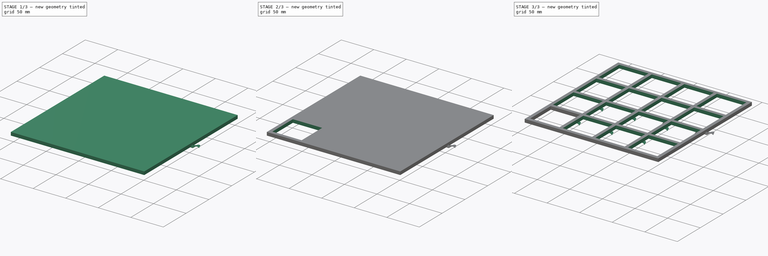
[diagram: build sequence overview — one tinted view per stage of 3, left to right]
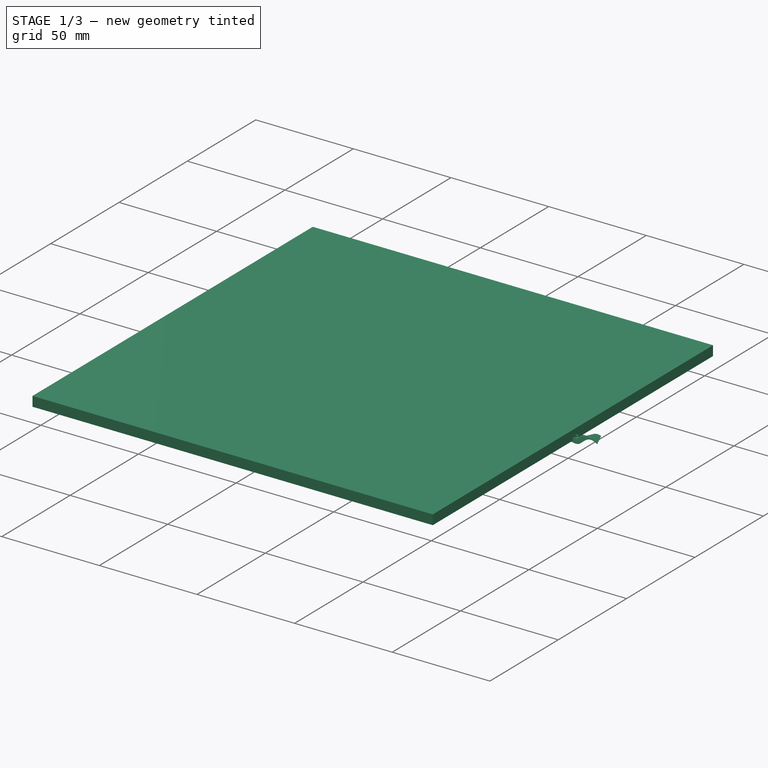
[diagram: stage 1 of 3 — iso view after this stage's code; geometry added in this stage tinted green]
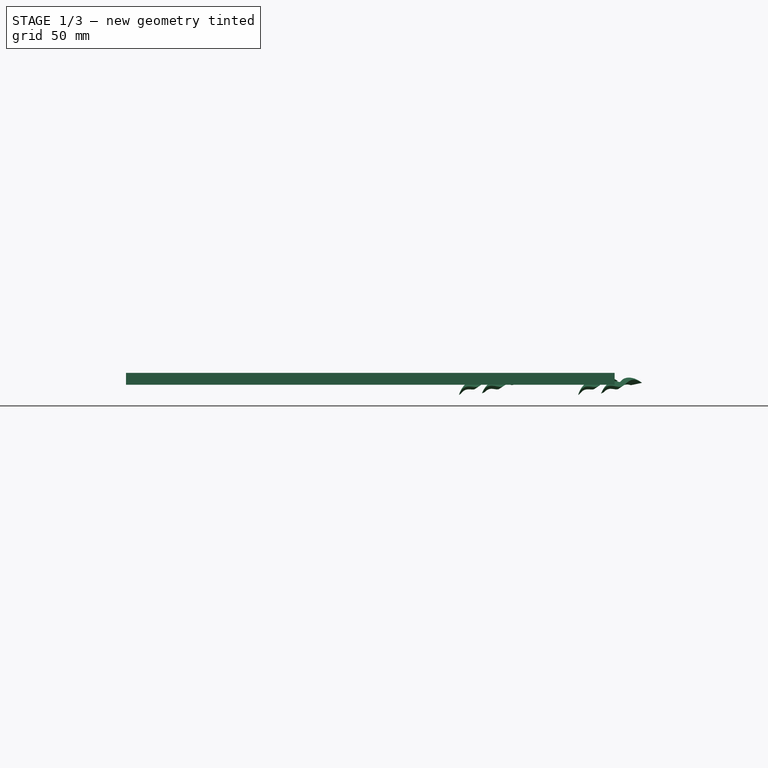
[diagram: stage 1 of 3 — front view after this stage's code; geometry added in this stage tinted green]
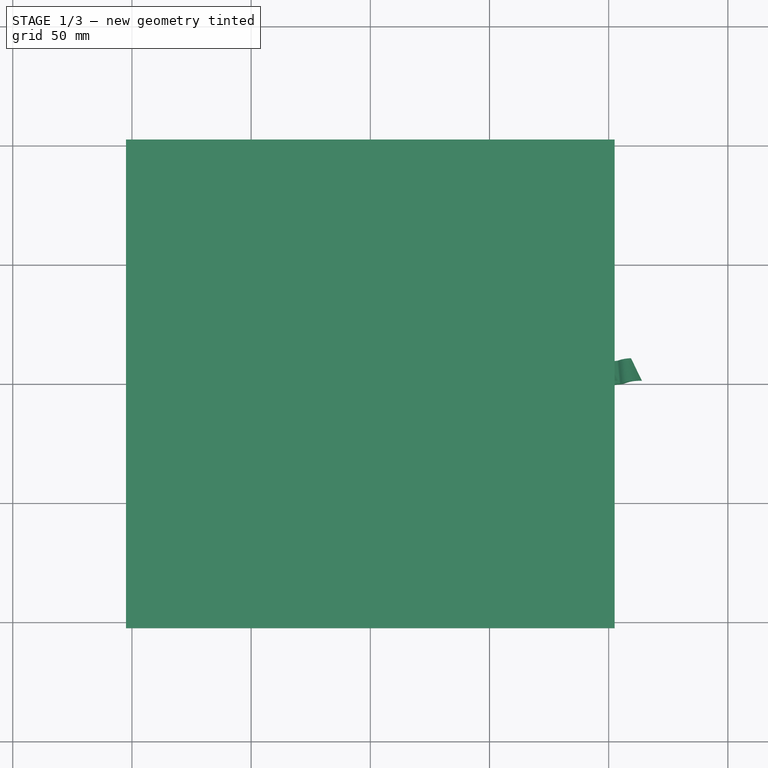
[diagram: stage 1 of 3 — top view after this stage's code; geometry added in this stage tinted green]
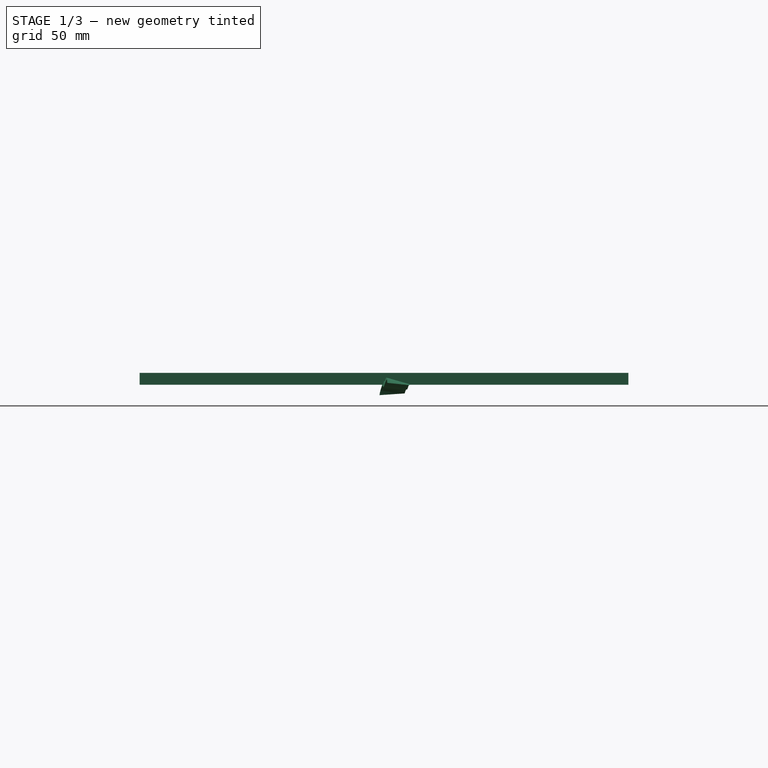
[diagram: stage 1 of 3 — right view after this stage's code; geometry added in this stage tinted green]
FCSTD DOCUMENT  (FreeCAD 0.19R)
Label: TestParentChildPositions
License: Creative Commons Attribution-ShareAlike
LicenseURL: http://creativecommons.org/licenses/by-sa/4.0/
objects: Part::Feature×9, App::Link×8, App::Part×8, App::LinkElement×5, Sketcher::SketchObject×5, PartDesign::LinearPattern×2, Part::FeaturePython×2, PartDesign::Pad×1, PartDesign::Pocket×1, PartDesign::MultiTransform×1, PartDesign::Body×1
note: 22 computed .brp shape members not serialized (recipe doc carries the construction recipe); baked Part::Feature solids carry a one-line shape summary decoded from their .brp

FEATURE [Part::Feature] Link__sc_export  label="Seagull_A1"
  Placement = pos=(-100,-100,0) rot=(-0.768115,-0.362358,0.527917;0.25814rad)
  shape: bbox 17.76 x 12.26 x 11.03 mm, 4 faces (baked)
FEATURE [App::LinkElement] Link001_i0  label="B1"
  LinkPlacement = pos=(-100,0,0) rot=(0,0,1;0rad)
  LinkedObject = -> Link__sc_export
  Placement = pos=(-100,0,0) rot=(0,0,1;0rad)
FEATURE [App::LinkElement] Link001_i1  label="B2"
  LinkPlacement = pos=(-50,0,-10) rot=(0,0,1;0rad)
  LinkedObject = -> Link__sc_export
  Placement = pos=(-50,0,-10) rot=(0,0,1;0rad)
  Scale = 0.6
  ScaleVector = (0.6,0.6,0.6)
FEATURE [App::LinkElement] Link001_i2  label="B3"
  LinkPlacement = pos=(0,0,-5) rot=(0,0,1;0rad)
  LinkedObject = -> Link__sc_export
  Placement = pos=(0,0,-5) rot=(0,0,1;0rad)
  Scale = 0.9
  ScaleVector = (0.9,0.9,0.9)
FEATURE [App::LinkElement] Link001_i3  label="B4"
  LinkPlacement = pos=(50,0,0) rot=(-0.409064,-0.236175,-0.881412;1.1598rad)
  LinkedObject = -> Link__sc_export
  Placement = pos=(50,0,0) rot=(-0.409064,-0.236175,-0.881412;1.1598rad)
FEATURE [App::LinkElement] Link001_i4  label="B5"
  LinkPlacement = pos=(100,0,5) rot=(-0.622886,-0.359616,0.694759;0.736199rad)
  LinkedObject = -> Link__sc_export
  Placement = pos=(100,0,5) rot=(-0.622886,-0.359616,0.694759;0.736199rad)
  Scale = 0.8
  ScaleVector = (0.8,0.8,0.8)
FEATURE [App::Link] Link001  label="Seagull_B_Array"
  ElementCount = 5
  ElementList = -> [Link001_i0,Link001_i1,Link001_i2,Link001_i3,Link001_i4]
  LinkPlacement = pos=(0,-50,-30) rot=(0,0,1;0rad)
  LinkedObject = -> Link__sc_export
  Placement = pos=(0,-50,-30) rot=(0,0,1;0rad)
FEATURE [Part::Feature] Link__sc_export001  label="Seagull_A3"
  Placement = pos=(0,-100,0) rot=(-0.517324,-0.079306,-0.852107;0.452611rad)
  shape: bbox 17.68 x 14.97 x 10.99 mm, 4 faces (baked)
FEATURE [Part::Feature] Link__sc_export002  label="Seagull_A2"
  Placement = pos=(-50,-100,-5) rot=(-0.197241,-0.191913,0.961387;0.881723rad)
  shape: bbox 17.44 x 17.99 x 10.99 mm, 4 faces (baked)
FEATURE [Sketcher::SketchObject] Sketch  label="Profile_Sketch"
  MapMode = 5
  Placement = pos=(0,0,0) rot=(1,0,0;1.5708rad)
  Support = -> [XZ_Plane]
  sketch-geometry (1):
    g0: Circle CenterX=0 CenterY=0 CenterZ=0 NormalX=0 NormalY=0 NormalZ=1 AngleXU=0 Radius=2
  constraints (2):
    c: Coincident(g0,g-1)
    c: Radius(g0) = 2
FEATURE [Sketcher::SketchObject] Sketch001  label="Grid_Sketch"
  AttachmentOffset = pos=(0,0,10) rot=(0,0,1;0rad)
  MapMode = 5
  Placement = pos=(0,0,10) rot=(0,0,1;0rad)
  Support = -> [XY_Plane]
  sketch-geometry (40):
    g0: LineSegment StartX=-100 StartY=100 StartZ=0 EndX=-100 EndY=50 EndZ=0
    g1: LineSegment StartX=-100 StartY=50 StartZ=0 EndX=-100 EndY=0 EndZ=0
    g2: LineSegment StartX=-100 StartY=0 StartZ=0 EndX=-50 EndY=0 EndZ=0
    g3: LineSegment StartX=-50 StartY=0 StartZ=0 EndX=-50 EndY=50 EndZ=0
    g4: LineSegment StartX=-50 StartY=50 StartZ=0 EndX=-50 EndY=100 EndZ=0
    g5: LineSegment StartX=-50 StartY=100 StartZ=0 EndX=0 EndY=100 EndZ=0
    g6: LineSegment StartX=0 StartY=100 StartZ=0 EndX=0 EndY=50 EndZ=0
    g7: LineSegment StartX=0 StartY=50 StartZ=0 EndX=0 EndY=0 EndZ=0
    g8: LineSegment StartX=0 StartY=0 StartZ=0 EndX=50 EndY=0 EndZ=0
    g9: LineSegment StartX=50 StartY=0 StartZ=0 EndX=50 EndY=50 EndZ=0
    g10: LineSegment StartX=50 StartY=50 StartZ=0 EndX=50 EndY=100 EndZ=0
    g11: LineSegment StartX=50 StartY=100 StartZ=0 EndX=100 EndY=100 EndZ=0
    g12: LineSegment StartX=100 StartY=100 StartZ=0 EndX=100 EndY=50 EndZ=0
    g13: LineSegment StartX=100 StartY=50 StartZ=0 EndX=100 EndY=0 EndZ=0
    g14: LineSegment StartX=100 StartY=0 StartZ=0 EndX=100 EndY=-50 EndZ=0
    g15: LineSegment StartX=100 StartY=-50 StartZ=0 EndX=50 EndY=-50 EndZ=0
    g16: LineSegment StartX=50 StartY=-50 StartZ=0 EndX=0 EndY=-50 EndZ=0
    g17: LineSegment StartX=0 StartY=-50 StartZ=0 EndX=-50 EndY=-50 EndZ=0
    g18: LineSegment StartX=-50 StartY=-50 StartZ=0 EndX=-100 EndY=-50 EndZ=0
    g19: LineSegment StartX=-100 StartY=-50 StartZ=0 EndX=-100 EndY=0 EndZ=0
    g20: LineSegment StartX=-50 StartY=50 StartZ=0 EndX=0 EndY=50 EndZ=0
    g21: LineSegment StartX=50 StartY=50 StartZ=0 EndX=100 EndY=50 EndZ=0
    g22: LineSegment StartX=0 StartY=50 StartZ=0 EndX=50 EndY=50 EndZ=0
    g23: LineSegment StartX=50 StartY=0 StartZ=0 EndX=100 EndY=0 EndZ=0
    g24: LineSegment StartX=0 StartY=0 StartZ=0 EndX=-50 EndY=0 EndZ=0
    g25: LineSegment StartX=-100 StartY=50 StartZ=0 EndX=-50 EndY=50 EndZ=0
    g26: LineSegment StartX=-100 StartY=100 StartZ=0 EndX=-50 EndY=100 EndZ=0
    g27: LineSegment StartX=0 StartY=100 StartZ=0 EndX=50 EndY=100 EndZ=0
    g28: LineSegment StartX=0 StartY=0 StartZ=0 EndX=0 EndY=-50 EndZ=0
    g29: LineSegment StartX=50 StartY=0 StartZ=0 EndX=50 EndY=-50 EndZ=0
    g30: LineSegment StartX=-50 StartY=0 StartZ=0 EndX=-50 EndY=-50 EndZ=0
    g31: LineSegment StartX=-100 StartY=-50 StartZ=0 EndX=-100 EndY=-100 EndZ=0
    g32: LineSegment StartX=-100 StartY=-100 StartZ=0 EndX=-50 EndY=-100 EndZ=0
    g33: LineSegment StartX=-50 StartY=-100 StartZ=0 EndX=0 EndY=-100 EndZ=0
    g34: LineSegment StartX=0 StartY=-100 StartZ=0 EndX=50 EndY=-100 EndZ=0
    g35: LineSegment StartX=50 StartY=-100 StartZ=0 EndX=100 EndY=-100 EndZ=0
    g36: LineSegment StartX=100 StartY=-100 StartZ=0 EndX=100 EndY=-50 EndZ=0
    g37: LineSegment StartX=50 StartY=-50 StartZ=0 EndX=50 EndY=-100 EndZ=0
    g38: LineSegment StartX=0 StartY=-50 StartZ=0 EndX=0 EndY=-100 EndZ=0
    g39: LineSegment StartX=-50 StartY=-50 StartZ=0 EndX=-50 EndY=-100 EndZ=0
  constraints (104):
    c: Vertical(g0)
    c: Coincident(g0,g1)
    c: Vertical(g1)
    c: Coincident(g1,g2)
    c: Horizontal(g2)
    c: Coincident(g2,g3)
    c: Vertical(g3)
    c: Coincident(g3,g4)
    c: Vertical(g4)
    c: Coincident(g4,g5)
    c: Horizontal(g5)
    c: Coincident(g5,g6)
    c: Vertical(g6)
    c: Coincident(g6,g7)
    c: Vertical(g7)
    c: Coincident(g7,g8)
    c: Horizontal(g8)
    c: Coincident(g8,g9)
    c: Vertical(g9)
    c: Coincident(g9,g10)
    c: Coincident(g10,g11)
    c: Coincident(g11,g12)
    c: Vertical(g12)
    c: Coincident(g12,g13)
    c: Vertical(g13)
    c: Coincident(g13,g14)
    c: Vertical(g14)
    c: Coincident(g14,g15)
    c: Coincident(g15,g16)
    c: Horizontal(g16)
    c: Coincident(g16,g17)
    c: Horizontal(g17)
    c: Coincident(g17,g18)
    c: Horizontal(g18)
    c: Coincident(g18,g19)
    c: Coincident(g19,g1)
    c: Vertical(g19)
    c: Vertical(g10)
    c: Horizontal(g11)
    c: Horizontal(g15)
    c: DistanceY(g0,g0) = 50
    c: Coincident(g20,g3)
    c: Coincident(g20,g6)
    c: Horizontal(g20)
    c: Coincident(g21,g9)
    c: Coincident(g21,g12)
    c: Horizontal(g21)
    c: Coincident(g22,g6)
    c: Coincident(g22,g9)
    c: Horizontal(g22)
    c: Coincident(g23,g8)
    c: Coincident(g23,g13)
    c: Horizontal(g23)
    c: Coincident(g24,g7)
    c: Coincident(g24,g2)
    c: Coincident(g25,g0)
    c: Coincident(g25,g3)
    c: Coincident(g26,g0)
    c: Coincident(g26,g4)
    c: Coincident(g27,g5)
    c: Coincident(g27,g10)
    c: Horizontal(g27)
    c: Coincident(g28,g7)
    c: Coincident(g28,g16)
    c: Vertical(g28)
    c: Coincident(g29,g8)
    c: Vertical(g29)
    c: Coincident(g30,g2)
    c: Coincident(g30,g17)
    c: Equal(g19,g1)
    c: Equal(g1,g0)
    c: Horizontal(g25)
    c: Horizontal(g26)
    c: Horizontal(g24)
    c: Vertical(g30)
    c: Coincident(g29,g15)
    c: Equal(g26,g5)
    c: Equal(g5,g27)
    c: Equal(g27,g11)
    c: Equal(g11,g0)
    c: Coincident(g7,g-1)
    c: Coincident(g18,g31)
    c: Vertical(g31)
    c: Coincident(g31,g32)
    c: Horizontal(g32)
    c: Coincident(g32,g33)
    c: Horizontal(g33)
    c: Coincident(g33,g34)
    c: Horizontal(g34)
    c: Coincident(g34,g35)
    c: Horizontal(g35)
    c: Coincident(g35,g36)
    c: Vertical(g36)
    c: Coincident(g36,g14)
    c: Coincident(g37,g15)
    c: Coincident(g37,g34)
    c: Coincident(g38,g16)
    c: Coincident(g38,g33)
    c: Coincident(g39,g32)
    c: Vertical(g39)
    c: Vertical(g38)
    c: Vertical(g37)
    c: Coincident(g39,g17)
    c: Equal(g31,g0)
FEATURE [Sketcher::SketchObject] Sketch002  label="Path_Sketch"
  MapMode = 5
  Support = -> [XY_Plane]
  sketch-geometry (5):
    g0: LineSegment StartX=-90 StartY=105 StartZ=0 EndX=100 EndY=105 EndZ=0
    g1: LineSegment [constr] StartX=100 StartY=105 StartZ=0 EndX=100 EndY=-105 EndZ=0
    g2: LineSegment [constr] StartX=100 StartY=-105 StartZ=0 EndX=-100 EndY=-105 EndZ=0
    g3: LineSegment StartX=-100 StartY=-105 StartZ=0 EndX=-100 EndY=95 EndZ=0
    g4: ArcOfCircle CenterX=-90 CenterY=95 CenterZ=0 NormalX=0 NormalY=0 NormalZ=1 AngleXU=0 Radius=10 StartAngle=1.5708 EndAngle=3.14159
  constraints (13):
    c: Coincident(g0,g1)
    c: Coincident(g1,g2)
    c: Coincident(g2,g3)
    c: Horizontal(g0)
    c: Horizontal(g2)
    c: Vertical(g1)
    c: Vertical(g3)
    c: Equal(g2,g3)
    c: DistanceX(g2,g2) = 200
    c: Symmetric(g0,g2,g-1)
    c: Tangent(g3,g4) = 1.5708
    c: Tangent(g0,g4) = 1.5708
    c: Radius(g4) = 10
FEATURE [Sketcher::SketchObject] Sketch003
  MapMode = 5
  Support = -> [XY_Plane]
  sketch-geometry (4):
    g0: LineSegment StartX=-102.5 StartY=102.5 StartZ=0 EndX=102.5 EndY=102.5 EndZ=0
    g1: LineSegment StartX=102.5 StartY=102.5 StartZ=0 EndX=102.5 EndY=-102.5 EndZ=0
    g2: LineSegment StartX=102.5 StartY=-102.5 StartZ=0 EndX=-102.5 EndY=-102.5 EndZ=0
    g3: LineSegment StartX=-102.5 StartY=-102.5 StartZ=0 EndX=-102.5 EndY=102.5 EndZ=0
  constraints (11):
    c: Coincident(g0,g1)
    c: Coincident(g1,g2)
    c: Coincident(g2,g3)
    c: Coincident(g3,g0)
    c: Horizontal(g0)
    c: Horizontal(g2)
    c: Vertical(g1)
    c: Vertical(g3)
    c: Equal(g2,g1)
    c: DistanceX(g2,g2) = 205
    c: Symmetric(g0,g2,g-1)
FEATURE [Sketcher::SketchObject] Sketch004
  MapMode = 5
  Support = -> [XY_Plane]
  sketch-geometry (12):
    g0: LineSegment StartX=-97.5 StartY=-52.5 StartZ=0 EndX=-52.5 EndY=-52.5 EndZ=0
    g1: LineSegment StartX=-52.5 StartY=-52.5 StartZ=0 EndX=-52.5 EndY=-97.5 EndZ=0
    g2: LineSegment StartX=-52.5 StartY=-97.5 StartZ=0 EndX=-97.5 EndY=-97.5 EndZ=0
    g3: LineSegment StartX=-97.5 StartY=-97.5 StartZ=0 EndX=-97.5 EndY=-52.5 EndZ=0
    g4: LineSegment [constr] StartX=-100 StartY=100 StartZ=0 EndX=100 EndY=100 EndZ=0
    g5: LineSegment [constr] StartX=100 StartY=100 StartZ=0 EndX=100 EndY=-100 EndZ=0
    g6: LineSegment [constr] StartX=100 StartY=-100 StartZ=0 EndX=-100 EndY=-100 EndZ=0
    g7: LineSegment [constr] StartX=-100 StartY=-100 StartZ=0 EndX=-100 EndY=100 EndZ=0
    g8: LineSegment [constr] StartX=-2.5 StartY=-2.5 StartZ=0 EndX=-47.5 EndY=-2.5 EndZ=0
    g9: LineSegment [constr] StartX=-47.5 StartY=-2.5 StartZ=0 EndX=-47.5 EndY=-47.5 EndZ=0
    g10: LineSegment [constr] StartX=-47.5 StartY=-47.5 StartZ=0 EndX=-2.5 EndY=-47.5 EndZ=0
    g11: LineSegment [constr] StartX=-2.5 StartY=-47.5 StartZ=0 EndX=-2.5 EndY=-2.5 EndZ=0
  constraints (35):
    c: Coincident(g0,g1)
    c: Coincident(g1,g2)
    c: Coincident(g2,g3)
    c: Coincident(g3,g0)
    c: Horizontal(g0)
    c: Horizontal(g2)
    c: Vertical(g1)
    c: Vertical(g3)
    c: Coincident(g4,g5)
    c: Coincident(g5,g6)
    c: Coincident(g6,g7)
    c: Coincident(g7,g4)
    c: Horizontal(g4)
    c: Horizontal(g6)
    c: Vertical(g5)
    c: Vertical(g7)
    c: Equal(g5,g6)
    c: DistanceX(g6,g6) = 200
    c: Symmetric(g6,g4,g-1)
    c: Equal(g2,g1)
    c: DistanceX(g6,g2) = 2.5
    c: DistanceY(g6,g2) = 2.5
    c: Coincident(g8,g9)
    c: Coincident(g9,g10)
    c: Coincident(g10,g11)
    c: Coincident(g11,g8)
    c: Horizontal(g8)
    c: Horizontal(g10)
    c: Vertical(g9)
    c: Vertical(g11)
    c: Equal(g10,g2)
    c: Equal(g9,g10)
    c: DistanceX(g8) = -2.5
    c: DistanceY(g8) = -2.5
    c: DistanceY(g0,g9) = 5
FEATURE [PartDesign::Pad] Pad
  Length = 5
  Length2 = 100
  Profile = -> Sketch003
  Type = 0
FEATURE [App::Link] Link005  label="Seagull_D5"
  LinkPlacement = pos=(100,0,50) rot=(0,0,1;0rad)
  LinkedObject = -> Link004
  Placement = pos=(100,0,50) rot=(0,0,1;0rad)
FEATURE [App::Part] Part002  label="Offset_D"
  Group = -> [Link003,Link005,Link004]
  Origin = -> Origin005
  Placement = pos=(0,50,0) rot=(0,0,1;0rad)
FEATURE [App::Part] Part004  label="Grid"
  Group = -> [Body,Body__sc_export]
  Origin = -> Origin007
FEATURE [Part::Feature] Link__sc_export006  label="Seagull_Double1_Body"
  Placement = pos=(-5,0,0) rot=(-0.419073,-0.825829,0.377339;0.42874rad)
  shape: bbox 16.66 x 12.81 x 11.38 mm, 4 faces (baked)
FEATURE [Part::Feature] Link__sc_export007  label="Seagull_Double2"
  Placement = pos=(5,0,0) rot=(-0.517047,-0.74229,0.426225;0.360009rad)
  shape: bbox 17.15 x 12.64 x 11.35 mm, 4 faces (baked)
FEATURE [App::Link] Link006  label="Seagull_Double_Link_E1"
  LinkPlacement = pos=(-100,100,0) rot=(0,0,1;0rad)
  LinkedObject = -> Part
  Placement = pos=(-100,100,0) rot=(0,0,1;0rad)
FEATURE [App::Link] Link007  label="Seagull_Double_Link"
  LinkedObject = -> Part
FEATURE [Part::FeaturePython] Array001  label="Seagull_Double_Array_B4-C5"  # Draft array (typed FeaturePython)
  Angle = 360
  ArrayType = 0
  Axis = (0,0,1)
  Base = -> Link007
  Center = (0,0,0)
  Count = 2
  ExpandArray = false
  Fuse = false
  IntervalAxis = (0,0,0)
  IntervalX = (50,0,0)
  IntervalY = (0,-50,0)
  IntervalZ = (0,0,1)
  NumberCircles = 2
  NumberPolar = 1
  NumberX = 2
  NumberY = 1
  NumberZ = 1
  Placement = pos=(50,0,0) rot=(0,0,1;0rad)
  PlacementList = 2 placements: [(0,0,0),(50,0,0)]
  RadialDistance = 1
  ScaleList = (2) [(1,1,1),(1,1,1)]
  Symmetry = 1
  TangentialDistance = 1
FEATURE [App::Part] Part001  label="Seagulls"
  Group = -> [Link001,Link__sc_export,Link__sc_export002,Link__sc_export001,Link__sc_export003,Link__sc_export004,Link,Part002,Link002,Array,Link__sc_export005,Link006,Link007,Array001]
  Origin = -> Origin004
  Placement = pos=(0,0,50) rot=(0,0,1;0rad)
FEATURE [App::Part] Part007  label="SD1_Part"
  Group = -> [Link__sc_export006]
  Origin = -> Origin011
FEATURE [App::Part] Part008  label="SD2_Part"
  Group = -> [Link__sc_export007]
  Origin = -> Origin012
FEATURE [App::Part] Part  label="Seagull_Double_Part"
  Group = -> [Part007,Part008]
  Origin = -> Origin008
  Placement = pos=(0,0,10) rot=(0,0,1;0rad)
FEATURE [App::Part] Part005  label="helper_Parts"
  Group = -> [Part]
  Origin = -> Origin009
FEATURE [App::Part] Part003  label="Wrapper"
  Group = -> [Part004,Part001,Part005]
  Origin = -> Origin006
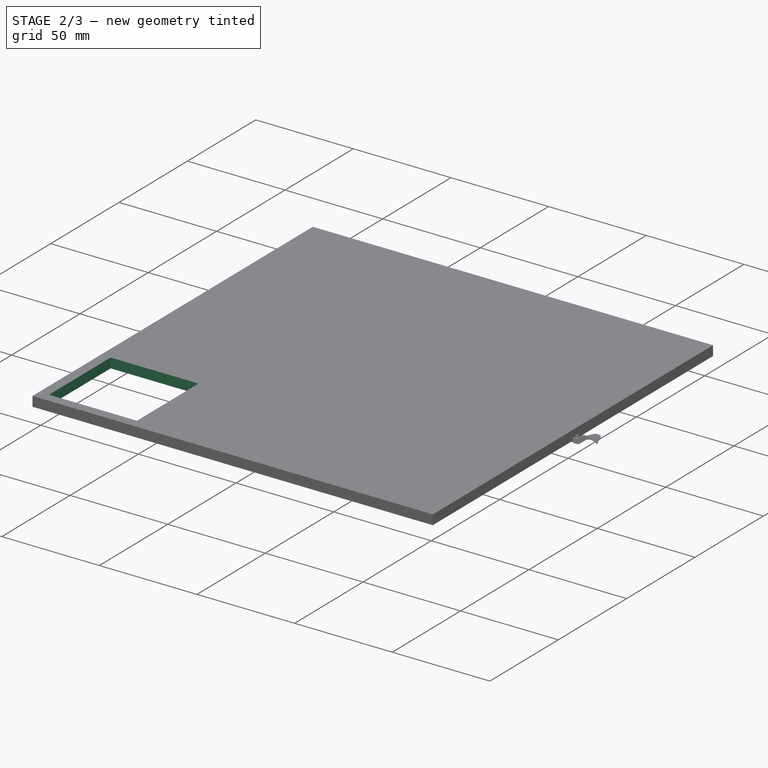
[diagram: stage 2 of 3 — iso view after this stage's code; geometry added in this stage tinted green]
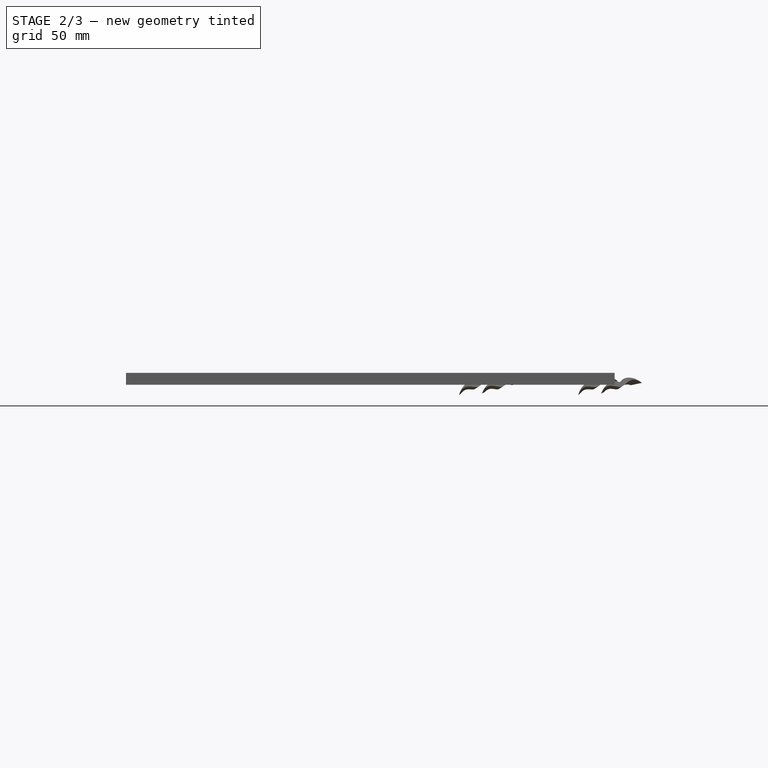
[diagram: stage 2 of 3 — front view after this stage's code; geometry added in this stage tinted green]
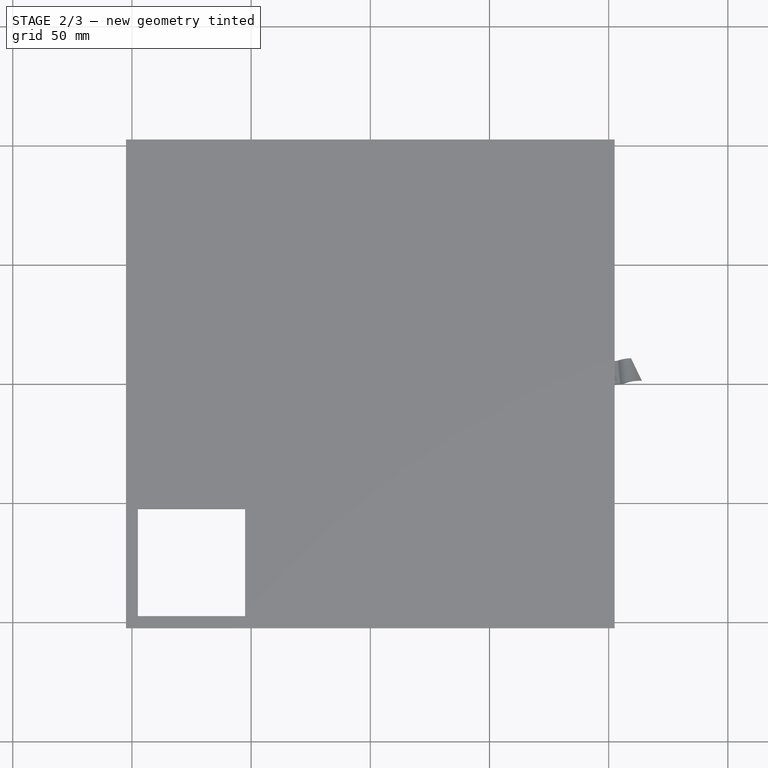
[diagram: stage 2 of 3 — top view after this stage's code; geometry added in this stage tinted green]
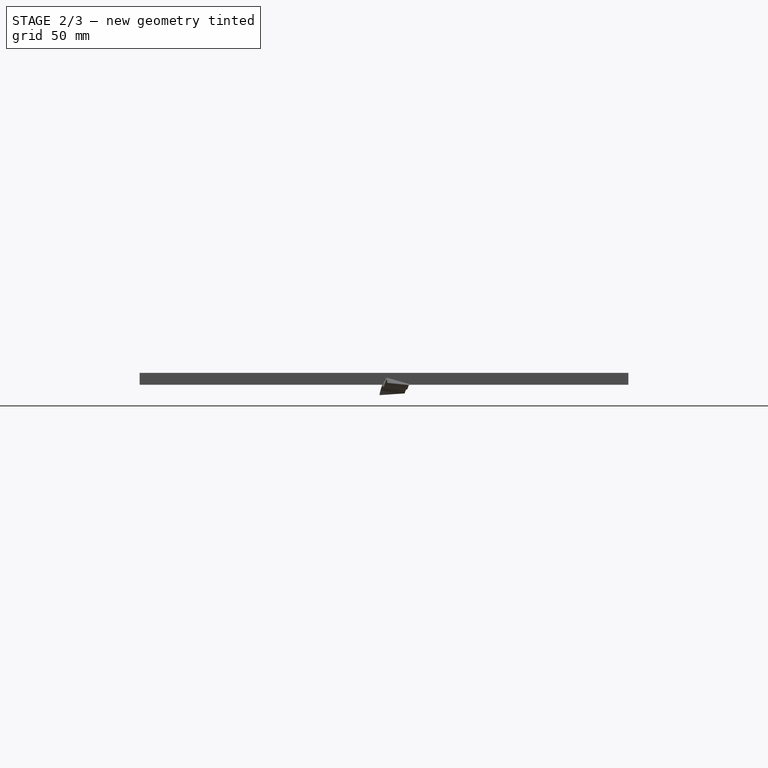
[diagram: stage 2 of 3 — right view after this stage's code; geometry added in this stage tinted green]
FEATURE [PartDesign::Pocket] Pocket
  BaseFeature = -> Pad
  Length = 5
  Length2 = 100
  Midplane = true
  Profile = -> Sketch004
  Reversed = true
  Type = 1
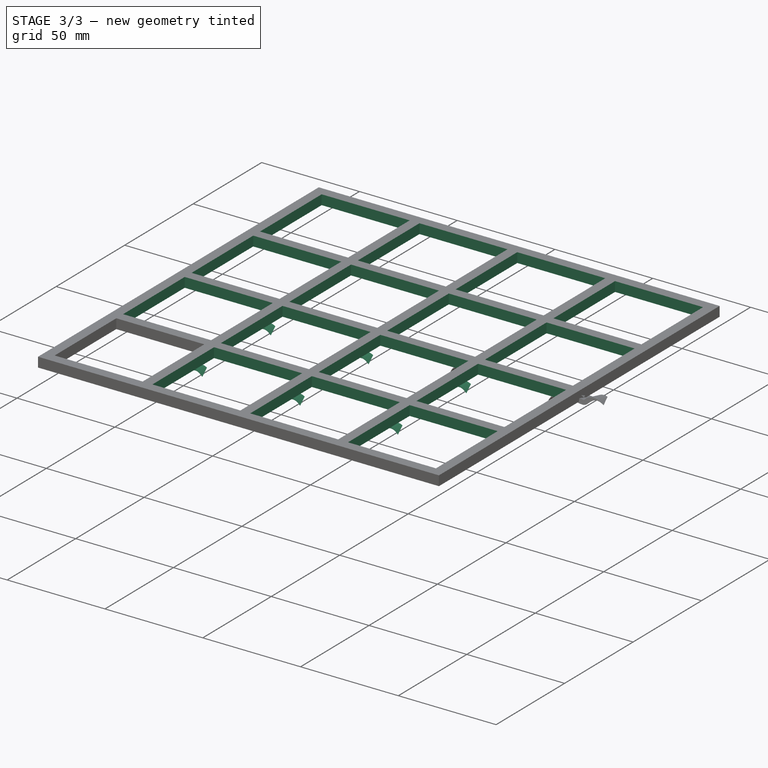
[diagram: stage 3 of 3 — iso view after this stage's code; geometry added in this stage tinted green]
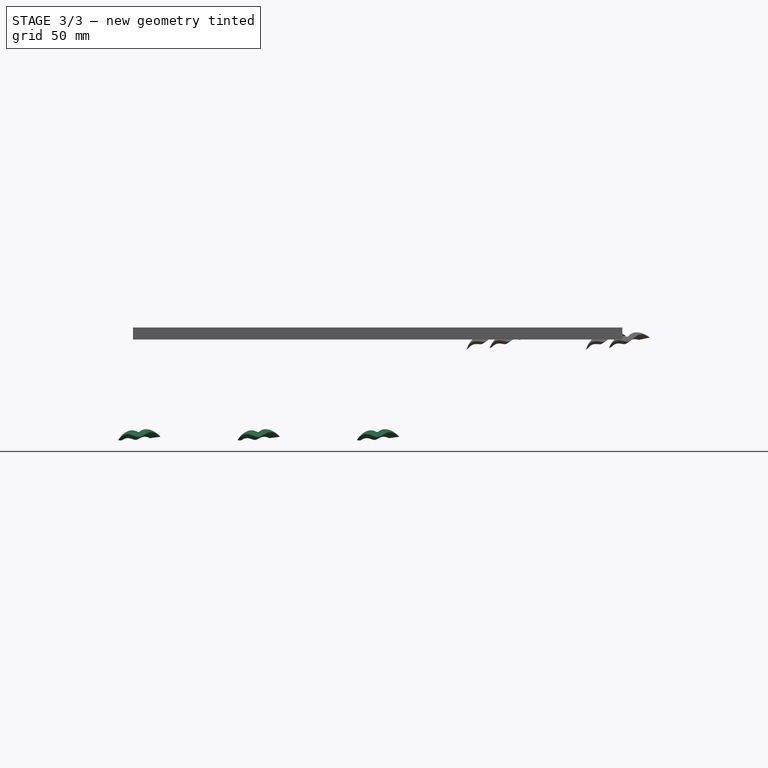
[diagram: stage 3 of 3 — front view after this stage's code; geometry added in this stage tinted green]
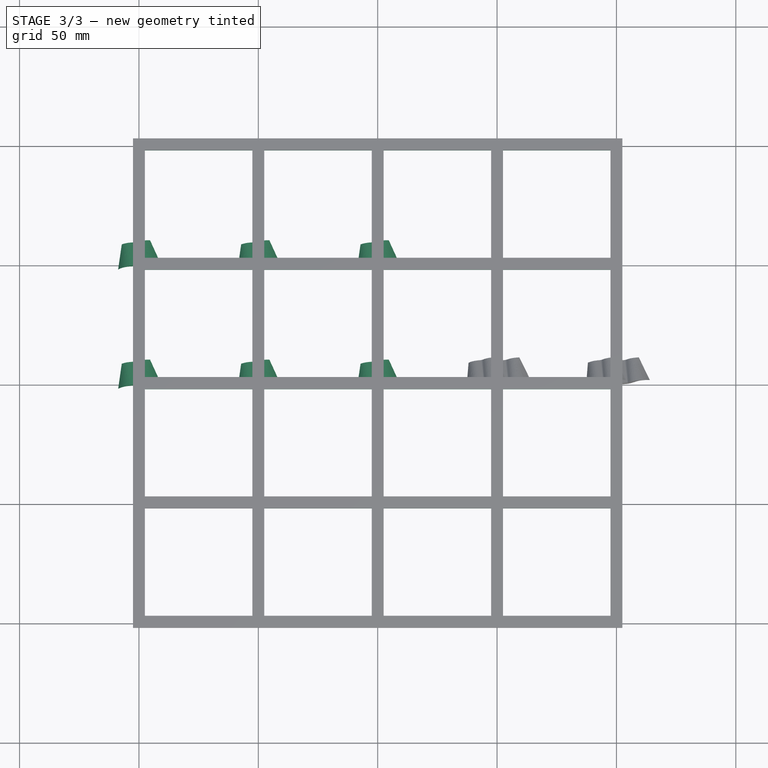
[diagram: stage 3 of 3 — top view after this stage's code; geometry added in this stage tinted green]
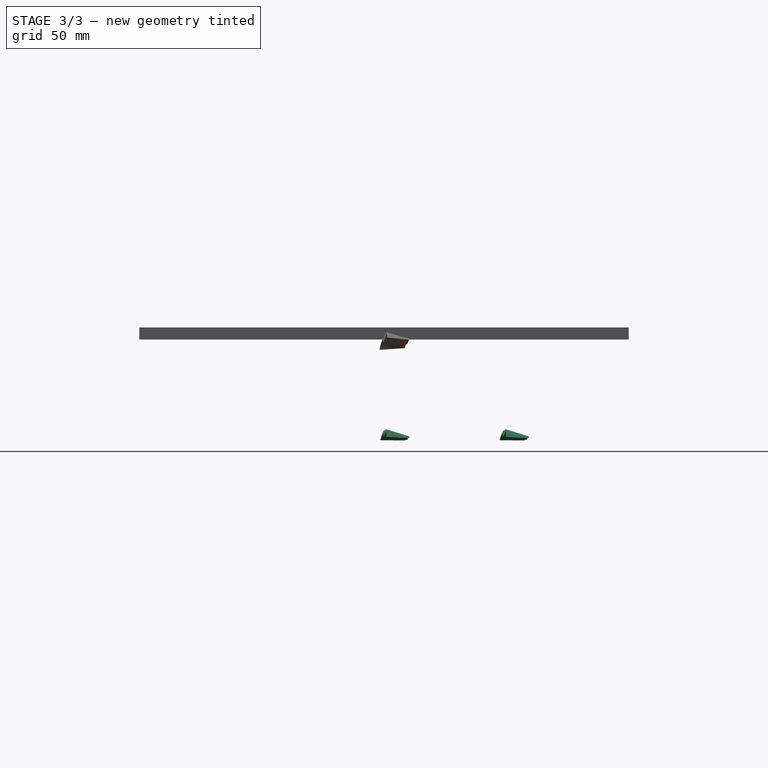
[diagram: stage 3 of 3 — right view after this stage's code; geometry added in this stage tinted green]
FEATURE [PartDesign::LinearPattern] LinearPattern
  Direction = -> Sketch004 [H_Axis]
  Length = 150
  Occurrences = 4
FEATURE [PartDesign::LinearPattern] LinearPattern001
  Direction = -> Sketch004 [V_Axis]
  Length = 150
  Occurrences = 4
FEATURE [PartDesign::MultiTransform] MultiTransform
  BaseFeature = -> Pocket
  Originals = -> [Pocket]
  Transformations = -> [LinearPattern,LinearPattern001]
FEATURE [PartDesign::Body] Body  label="Grid_Body"
  Group = -> [Sketch,Sketch001,Sketch002,Sketch003,Sketch004,Pad,Pocket,MultiTransform,LinearPattern,LinearPattern001]
  Origin = -> Origin
  Tip = -> MultiTransform
FEATURE [Part::Feature] Body__sc_export  label="Grid_Body__sc_export"
  shape: bbox 205 x 205 x 5 mm, 70 faces (baked)
FEATURE [Part::Feature] Link__sc_export003  label="Seagull_A4"
  Placement = pos=(50,-100,-5) rot=(-0.290596,-0.841326,0.455768;0.591688rad)
  shape: bbox 15.73 x 14.12 x 12.19 mm, 4 faces (baked)
FEATURE [Part::Feature] Link__sc_export004  label="Seagull_A5"
  Placement = pos=(100,-100,0) rot=(-0.674326,-0.152158,-0.722587;0.341411rad)
  shape: bbox 17.43 x 13.42 x 10.99 mm, 4 faces (baked)
FEATURE [App::Link] Link  label="Seagull_C3"
  ColoredElements = -> Link [Face2]
  LinkPlacement = pos=(0,0,-40) rot=(0,0,1;0rad)
  LinkedObject = -> Link__sc_export
  Placement = pos=(0,0,-40) rot=(0,0,1;0rad)
FEATURE [App::Link] Link002  label="Seagull_E2"
  LinkPlacement = pos=(-50,100,0) rot=(0,0,1;-0.436332rad)
  LinkedObject = -> Link__sc_export
  Placement = pos=(-50,100,0) rot=(0,0,1;-0.436332rad)
FEATURE [App::Link] Link003  label="Seagull_D4"
  LinkPlacement = pos=(50,0,0) rot=(0,0,1;0rad)
  LinkedObject = -> Link__sc_export
  Placement = pos=(50,0,0) rot=(0,0,1;0rad)
FEATURE [App::Link] Link004  label="Seagull_E5"
  LinkPlacement = pos=(100,50,-20) rot=(0,0,1;0rad)
  LinkedObject = -> Link003
  Placement = pos=(100,50,-20) rot=(0,0,1;0rad)
FEATURE [Part::Feature] Link__sc_export005  label="Seagull_A1_copy"
  Placement = pos=(-100,-100,0) rot=(-0.793653,-0.348646,0.498559;0.271776rad)
  shape: bbox 17.76 x 12.3 x 10.99 mm, 4 faces (baked)
FEATURE [Part::FeaturePython] Array  label="Array_C1-D3"  # Draft array (typed FeaturePython)
  Angle = 360
  ArrayType = 0
  Axis = (0,0,1)
  Base = -> Link__sc_export005
  Center = (0,0,0)
  Count = 6
  ExpandArray = false
  Fuse = false
  IntervalAxis = (0,0,0)
  IntervalX = (50,0,0)
  IntervalY = (0,50,0)
  IntervalZ = (0,0,1)
  NumberCircles = 2
  NumberPolar = 1
  NumberX = 3
  NumberY = 2
  NumberZ = 1
  Placement = pos=(0,100,-40) rot=(0,0,1;0rad)
  PlacementList = 6 placements: [(-100,-100,0),(-100,-50,0),(-50,-100,0),(-50,-50,0),(0,-100,0),(0,-50,0)]
  RadialDistance = 1
  ScaleList = (6) [(1,1,1),(1,1,1),(1,1,1),(1,1,1),(1,1,1),(1,1,1)]
  Symmetry = 1
  TangentialDistance = 1
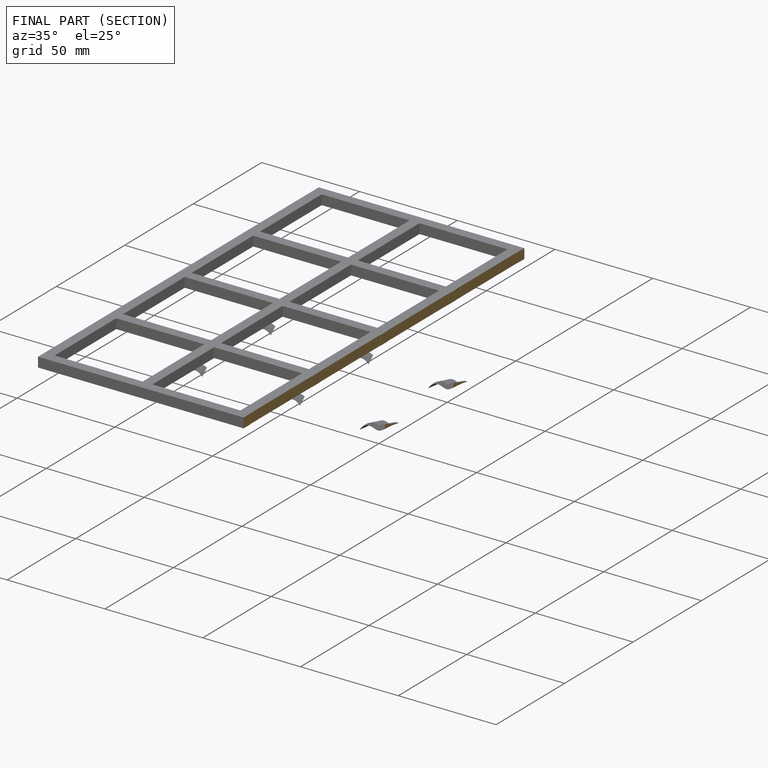
[diagram: finished part — half-section view (interior)]
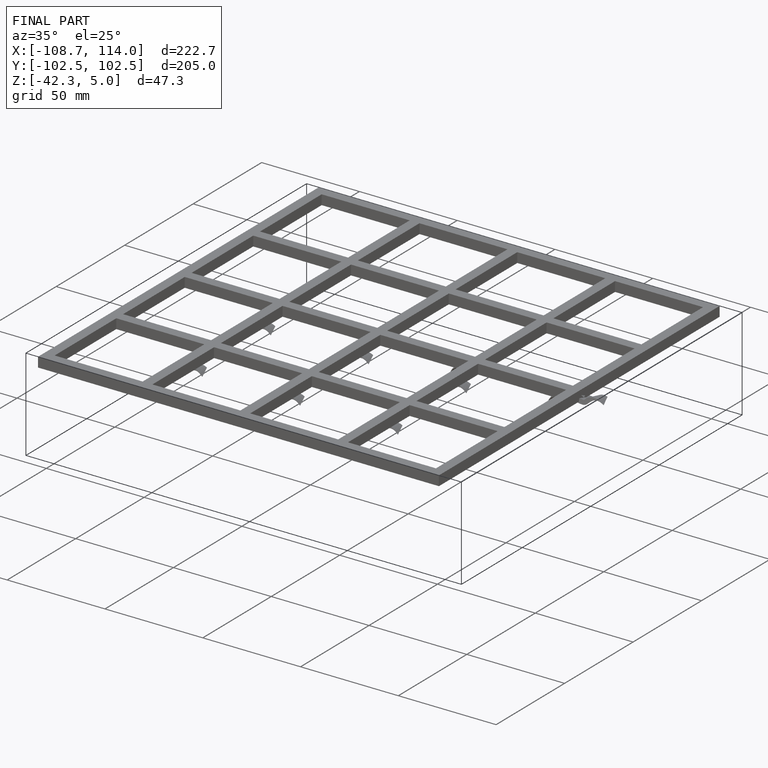
[diagram: finished part — iso view with bounding-box wireframe]
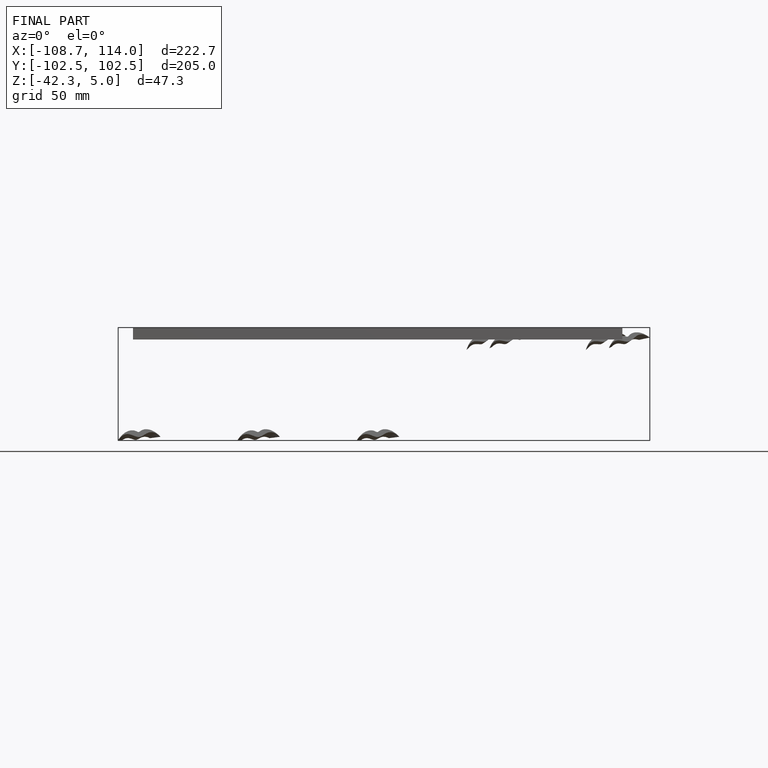
[diagram: finished part — front view with bounding-box wireframe]
